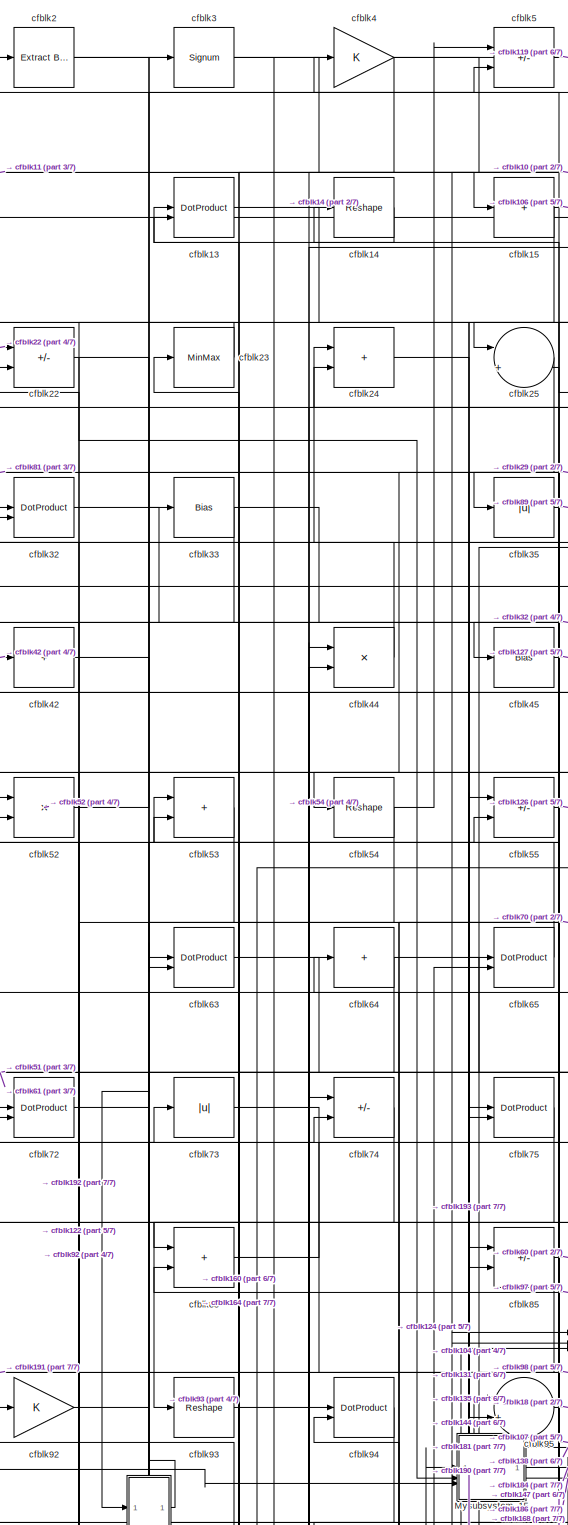
[diagram: root canvas - part 1/7, top left region]
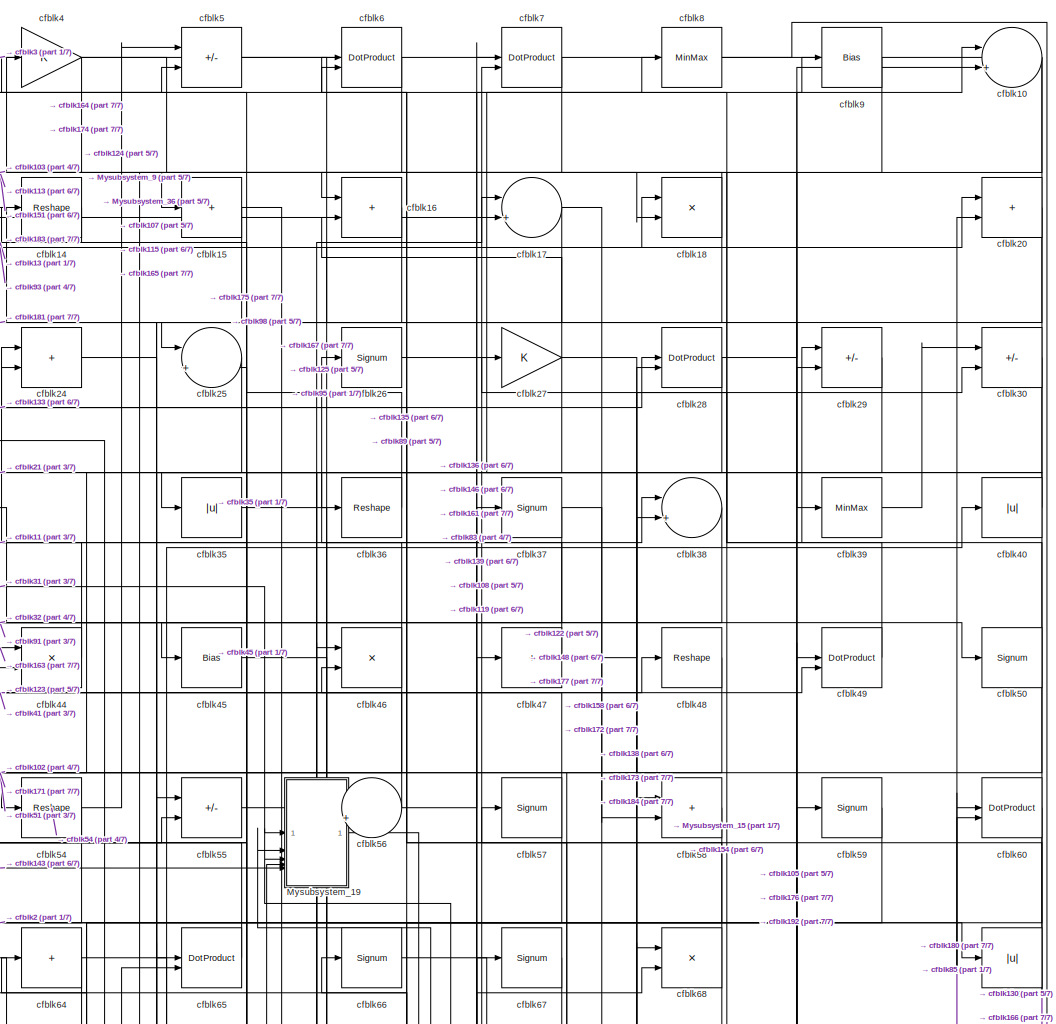
[diagram: root canvas - part 2/7, top center region]
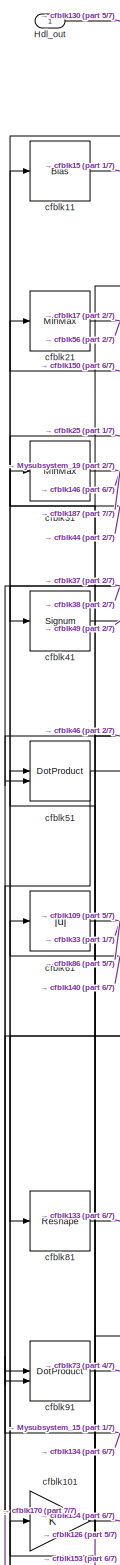
[diagram: root canvas - part 3/7, top left region]
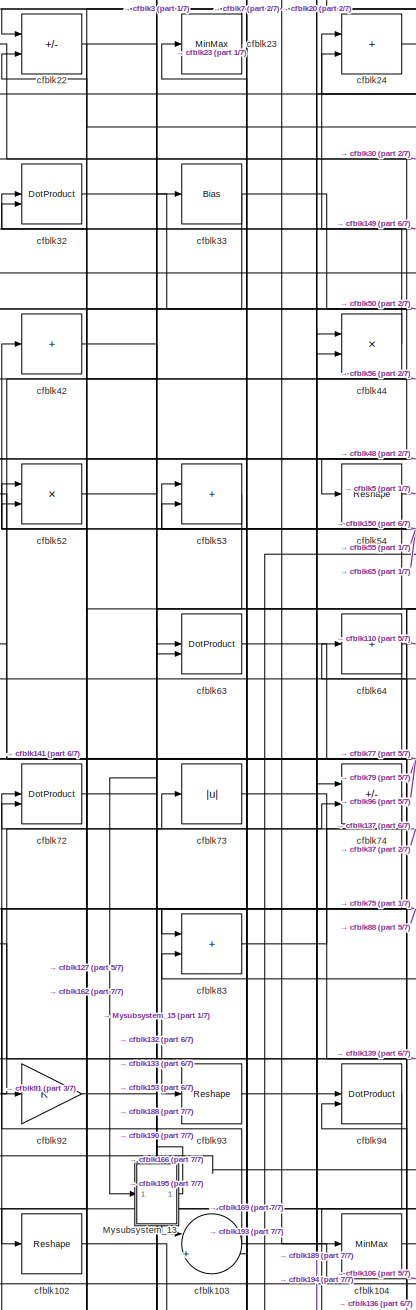
[diagram: root canvas - part 4/7, top left region]
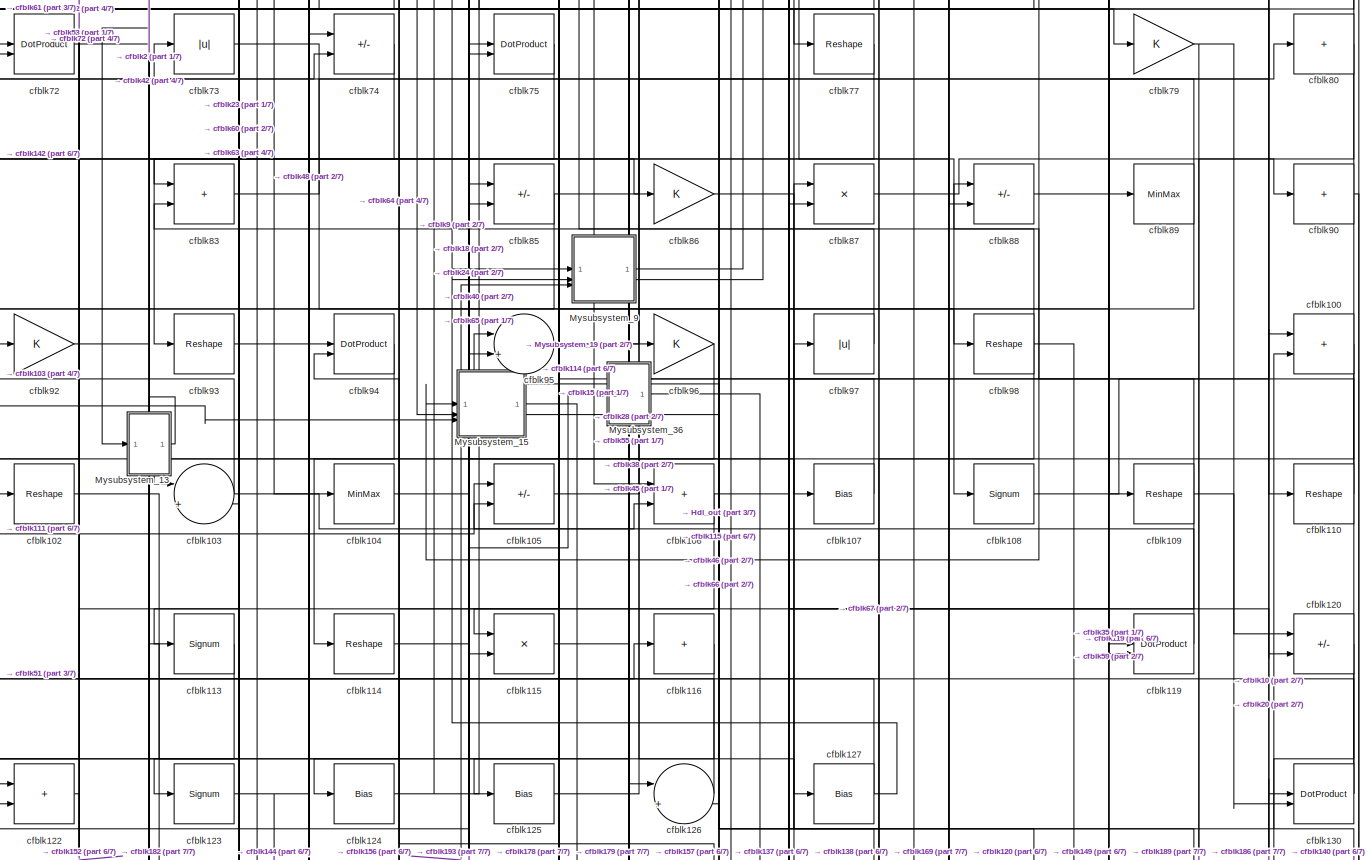
[diagram: root canvas - part 5/7, full width, middle band]
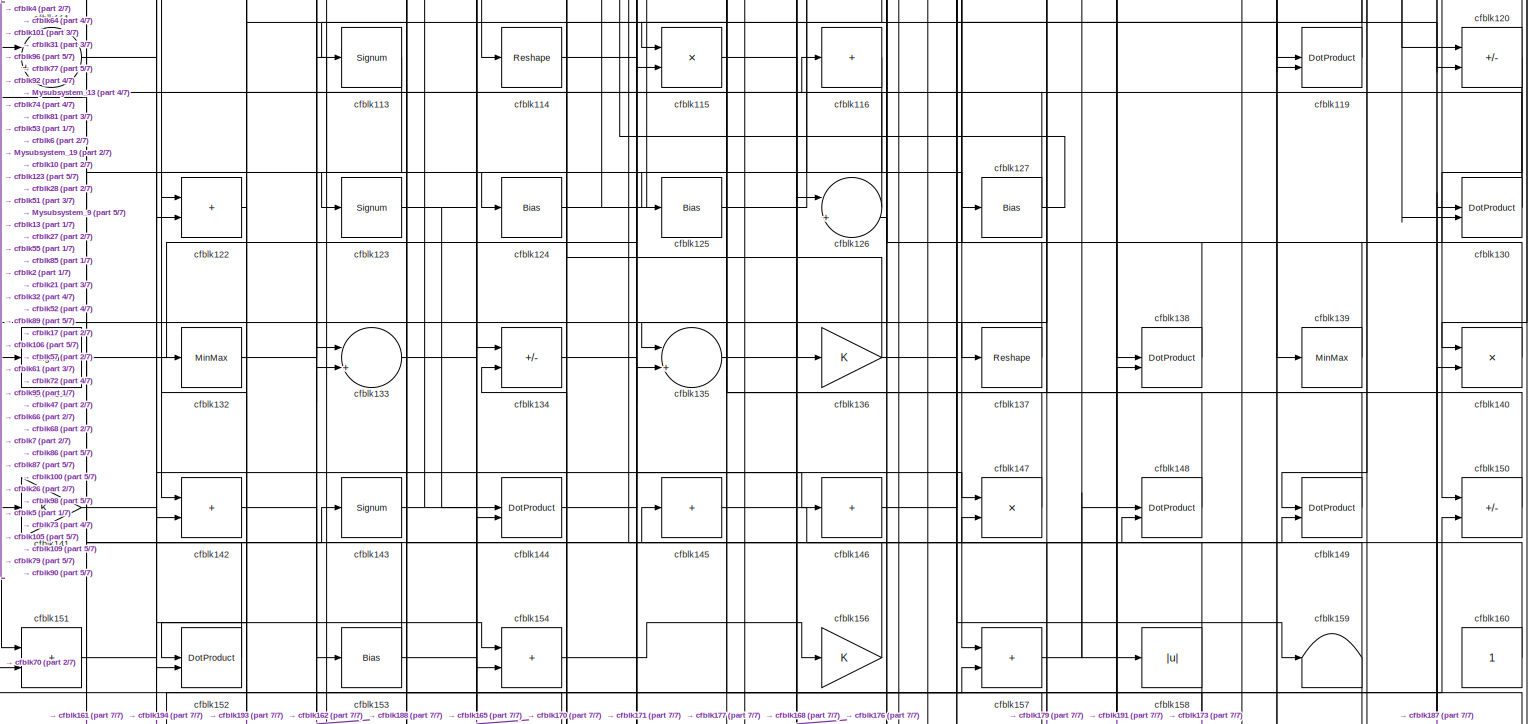
[diagram: root canvas - part 6/7, full width, bottom band]
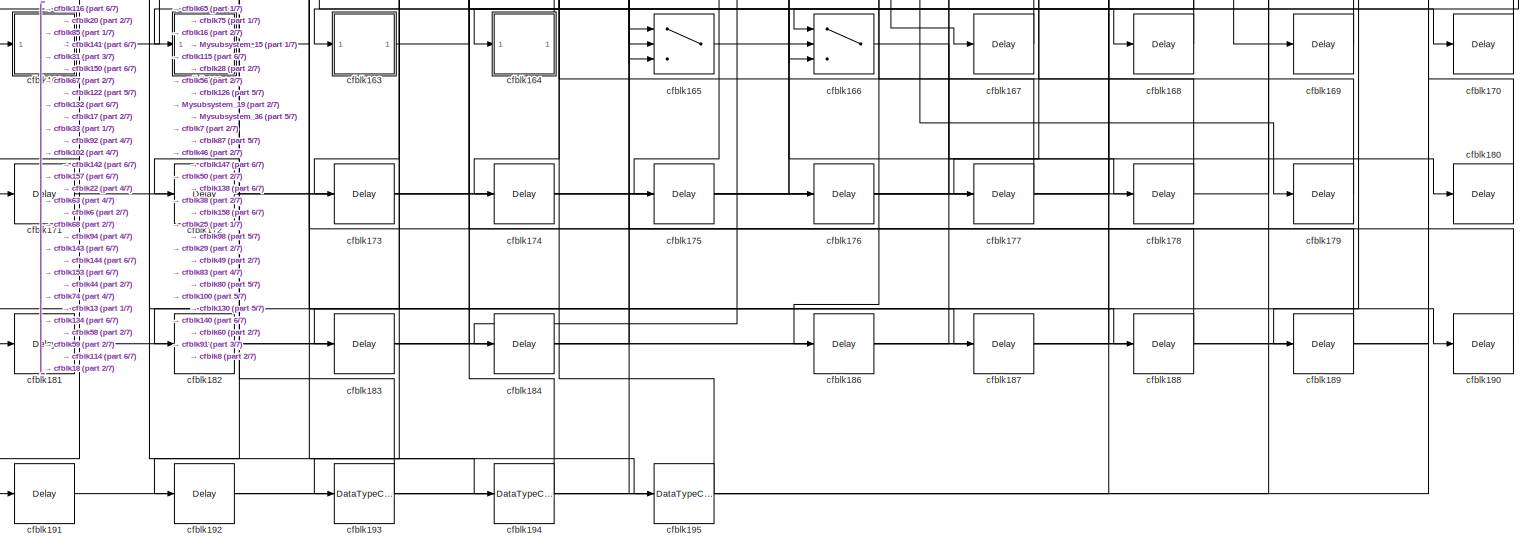
[diagram: root canvas - part 7/7, full width, bottom band]
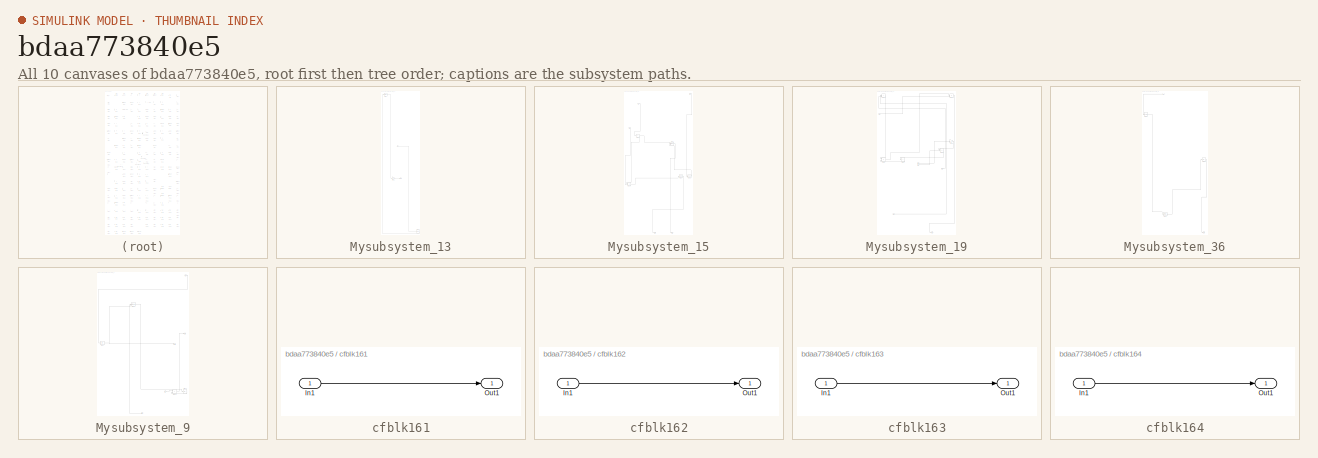
[diagram: thumbnail index - all 10 canvases of the model, root first then tree order]
MODEL slx_bdaa773840e5
KIND model
CONFIG AbsTol = auto
CONFIG EnableMultiTasking = off
CONFIG FixedStep = auto
CONFIG MaxStep = auto
CONFIG MinStep = auto
CONFIG RelTol = 1e-3
CONFIG SampleTimeConstraint = Unconstrained
CONFIG SolverName = VariableStepAuto
CONFIG StartTime = 0.0
CONFIG StopTime = 10.0
BLOCK [Outport] Hdl_out
  OutDataTypeStr = uint8
BLOCK [SubSystem] Mysubsystem_13
  RTWFcnName = Mysubsystem_13
  RTWFcnNameOpts = User specified
  RTWFileNameOpts = Use function name
  RTWSystemCode = Reusable function
  TreatAsAtomicUnit = on
BLOCK [Inport] Mysubsystem_13/In1
BLOCK [Outport] Mysubsystem_13/Out1
BLOCK [Reference] Mysubsystem_13/cfblk1  REF=hdlsllib/Logic and Bit
Operations/Detect Fall
Negative
  SourceBlock = hdlsllib/Logic and Bit\nOperations/Detect Fall\nNegative
  SourceType = Detect Fall Negative
BLOCK [Gain] Mysubsystem_13/cfblk112
BLOCK [Delay] Mysubsystem_13/cfblk185
  InputPortMap = u0
  SampleTime = 1
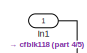
[diagram: Mysubsystem_15 - part 1/5, top right region]
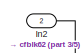
[diagram: Mysubsystem_15 - part 2/5, top left region]
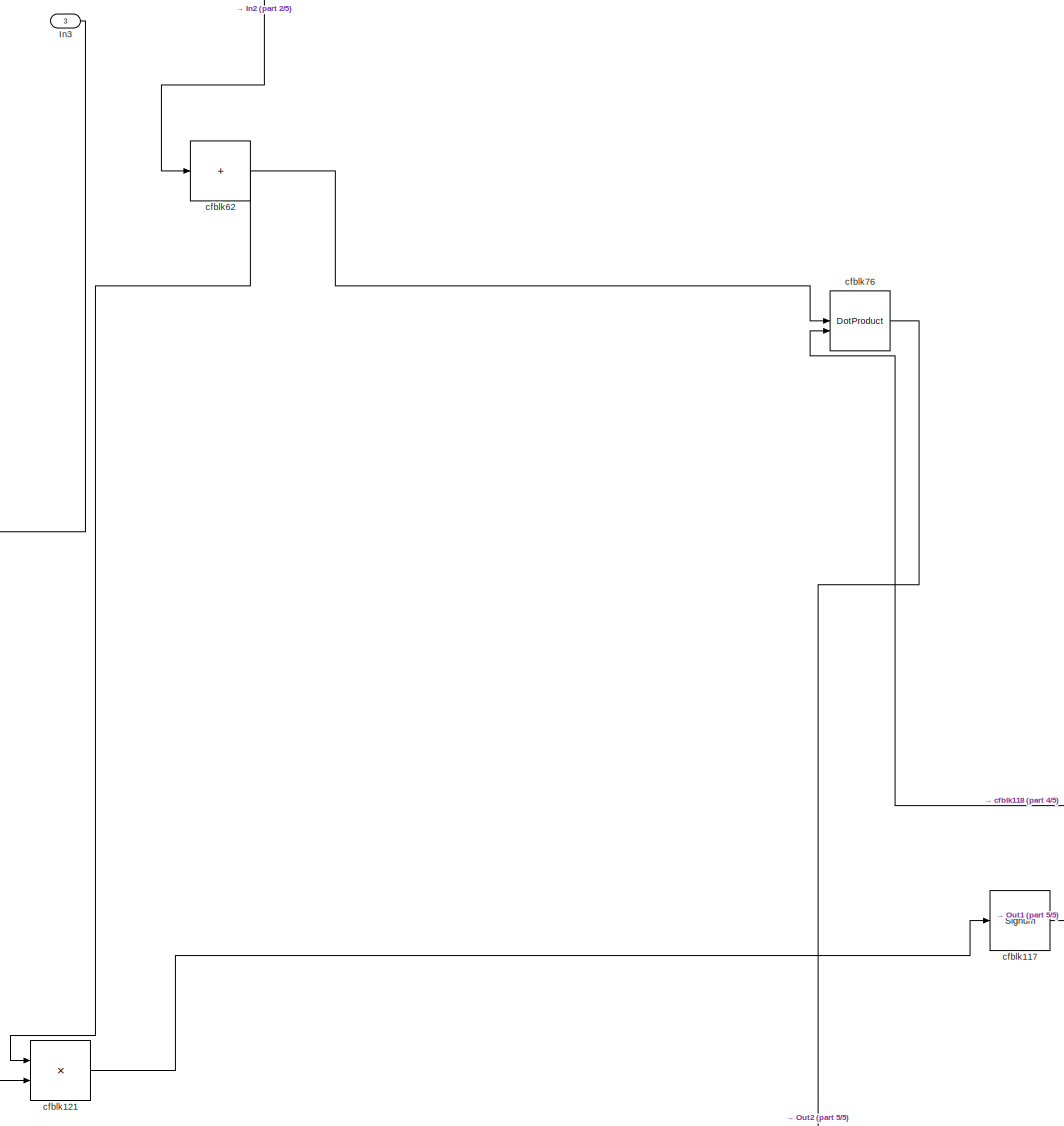
[diagram: Mysubsystem_15 - part 3/5, full width, middle band]
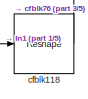
[diagram: Mysubsystem_15 - part 4/5, middle right region]
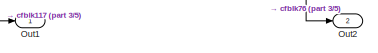
[diagram: Mysubsystem_15 - part 5/5, bottom center region]
BLOCK [SubSystem] Mysubsystem_15
  RTWFcnName = Mysubsystem_15
  RTWFcnNameOpts = User specified
  RTWFileNameOpts = Use function name
  RTWSystemCode = Reusable function
  TreatAsAtomicUnit = on
BLOCK [Inport] Mysubsystem_15/In1
BLOCK [Inport] Mysubsystem_15/In2
  Port = 2
BLOCK [Inport] Mysubsystem_15/In3
  Port = 3
BLOCK [Outport] Mysubsystem_15/Out1
BLOCK [Outport] Mysubsystem_15/Out2
  Port = 2
BLOCK [Signum] Mysubsystem_15/cfblk117
BLOCK [Reshape] Mysubsystem_15/cfblk118
BLOCK [Product] Mysubsystem_15/cfblk121
  Inputs = */
  RndMeth = Zero
  SaturateOnIntegerOverflow = on
BLOCK [Sum] Mysubsystem_15/cfblk62
  IconShape = rectangular
  Inputs = +
BLOCK [DotProduct] Mysubsystem_15/cfblk76
  OutDataTypeStr = Inherit: Inherit via internal rule
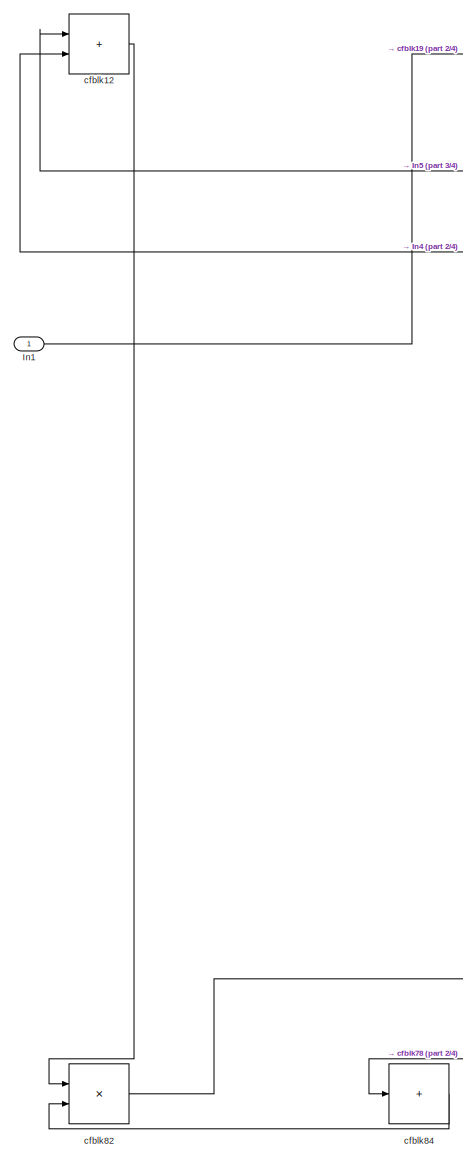
[diagram: Mysubsystem_19 - part 1/4, top left region]
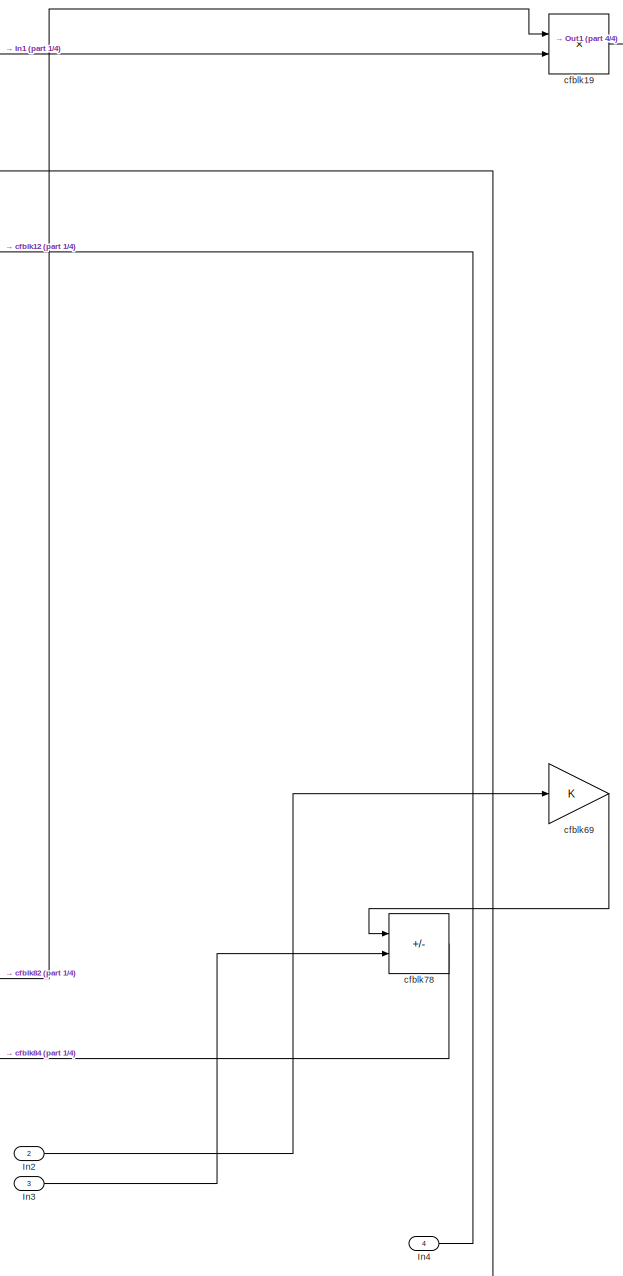
[diagram: Mysubsystem_19 - part 2/4, top right region]
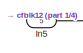
[diagram: Mysubsystem_19 - part 3/4, bottom left region]
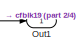
[diagram: Mysubsystem_19 - part 4/4, bottom right region]
BLOCK [SubSystem] Mysubsystem_19
  RTWFcnName = Mysubsystem_19
  RTWFcnNameOpts = User specified
  RTWFileNameOpts = Use function name
  RTWSystemCode = Reusable function
  TreatAsAtomicUnit = on
BLOCK [Inport] Mysubsystem_19/In1
BLOCK [Inport] Mysubsystem_19/In2
  Port = 2
BLOCK [Inport] Mysubsystem_19/In3
  Port = 3
BLOCK [Inport] Mysubsystem_19/In4
  Port = 4
BLOCK [Inport] Mysubsystem_19/In5
  Port = 5
BLOCK [Outport] Mysubsystem_19/Out1
BLOCK [Sum] Mysubsystem_19/cfblk12
  IconShape = rectangular
BLOCK [Product] Mysubsystem_19/cfblk19
  Inputs = */
  RndMeth = Zero
  SaturateOnIntegerOverflow = on
BLOCK [Gain] Mysubsystem_19/cfblk69
BLOCK [Sum] Mysubsystem_19/cfblk78
  IconShape = rectangular
  Inputs = +-
BLOCK [Product] Mysubsystem_19/cfblk82
  Inputs = */
  RndMeth = Zero
  SaturateOnIntegerOverflow = on
BLOCK [Sum] Mysubsystem_19/cfblk84
  IconShape = rectangular
  Inputs = +
BLOCK [SubSystem] Mysubsystem_36
  RTWFcnName = Mysubsystem_36
  RTWFcnNameOpts = User specified
  RTWFileNameOpts = Use function name
  RTWSystemCode = Reusable function
  TreatAsAtomicUnit = on
BLOCK [Inport] Mysubsystem_36/In1
BLOCK [Outport] Mysubsystem_36/Out1
BLOCK [MinMax] Mysubsystem_36/cfblk155
BLOCK [Reshape] Mysubsystem_36/cfblk43
BLOCK [Abs] Mysubsystem_36/cfblk99
  SaturateOnIntegerOverflow = off
BLOCK [SubSystem] Mysubsystem_9
  RTWFcnName = Mysubsystem_9
  RTWFcnNameOpts = User specified
  RTWFileNameOpts = Use function name
  RTWSystemCode = Reusable function
  TreatAsAtomicUnit = on
BLOCK [Inport] Mysubsystem_9/In1
BLOCK [Inport] Mysubsystem_9/In2
  Port = 2
BLOCK [Inport] Mysubsystem_9/In3
  Port = 3
BLOCK [Outport] Mysubsystem_9/Out1
BLOCK [Outport] Mysubsystem_9/Out2
  Port = 2
BLOCK [Sum] Mysubsystem_9/cfblk128
  IconShape = rectangular
BLOCK [Abs] Mysubsystem_9/cfblk129
  SaturateOnIntegerOverflow = off
BLOCK [DotProduct] Mysubsystem_9/cfblk34
  OutDataTypeStr = Inherit: Inherit via internal rule
BLOCK [Abs] Mysubsystem_9/cfblk71
  SaturateOnIntegerOverflow = off
BLOCK [Sum] cfblk10
  Inputs = |++
  OutDataTypeStr = uint8
BLOCK [Sum] cfblk100
  IconShape = rectangular
  OutDataTypeStr = uint8
BLOCK [Gain] cfblk101
  OutDataTypeStr = uint8
BLOCK [Reshape] cfblk102
BLOCK [Sum] cfblk103
  Inputs = |++
  OutDataTypeStr = uint8
BLOCK [MinMax] cfblk104
  OutDataTypeStr = uint8
BLOCK [Sum] cfblk105
  IconShape = rectangular
  Inputs = +-
  OutDataTypeStr = uint8
BLOCK [Sum] cfblk106
  IconShape = rectangular
  OutDataTypeStr = uint8
BLOCK [Bias] cfblk107
  Bias = 0.0
  SaturateOnIntegerOverflow = off
BLOCK [Signum] cfblk108
BLOCK [Reshape] cfblk109
BLOCK [Bias] cfblk11
  Bias = 0.0
  SaturateOnIntegerOverflow = off
BLOCK [Reshape] cfblk110
BLOCK [Sum] cfblk111
  Inputs = |++
  OutDataTypeStr = uint8
BLOCK [Signum] cfblk113
BLOCK [Reshape] cfblk114
BLOCK [Product] cfblk115
  Inputs = */
  OutDataTypeStr = uint8
  RndMeth = Zero
  SaturateOnIntegerOverflow = on
BLOCK [Sum] cfblk116
  IconShape = rectangular
  Inputs = +
  OutDataTypeStr = uint8
BLOCK [DotProduct] cfblk119
  OutDataTypeStr = uint8
BLOCK [Sum] cfblk120
  IconShape = rectangular
  Inputs = +-
  OutDataTypeStr = uint8
BLOCK [Sum] cfblk122
  IconShape = rectangular
  OutDataTypeStr = uint8
BLOCK [Signum] cfblk123
BLOCK [Bias] cfblk124
  Bias = 0.0
  SaturateOnIntegerOverflow = off
BLOCK [Bias] cfblk125
  Bias = 0.0
  SaturateOnIntegerOverflow = off
BLOCK [Sum] cfblk126
  Inputs = |++
  OutDataTypeStr = uint8
BLOCK [Bias] cfblk127
  Bias = 0.0
  SaturateOnIntegerOverflow = off
BLOCK [DotProduct] cfblk13
  OutDataTypeStr = uint8
BLOCK [DotProduct] cfblk130
  OutDataTypeStr = uint8
BLOCK [Signum] cfblk131
BLOCK [MinMax] cfblk132
  OutDataTypeStr = uint8
BLOCK [Sum] cfblk133
  Inputs = |++
  OutDataTypeStr = uint8
BLOCK [Sum] cfblk134
  IconShape = rectangular
  Inputs = +-
  OutDataTypeStr = uint8
BLOCK [Sum] cfblk135
  Inputs = |++
  OutDataTypeStr = uint8
BLOCK [Gain] cfblk136
  OutDataTypeStr = uint8
BLOCK [Reshape] cfblk137
BLOCK [DotProduct] cfblk138
  OutDataTypeStr = uint8
BLOCK [MinMax] cfblk139
  OutDataTypeStr = uint8
BLOCK [Reshape] cfblk14
BLOCK [Product] cfblk140
  Inputs = */
  OutDataTypeStr = uint8
  RndMeth = Zero
  SaturateOnIntegerOverflow = on
BLOCK [Gain] cfblk141
  OutDataTypeStr = uint8
BLOCK [Sum] cfblk142
  IconShape = rectangular
  OutDataTypeStr = uint8
BLOCK [Signum] cfblk143
BLOCK [DotProduct] cfblk144
  OutDataTypeStr = uint8
BLOCK [Sum] cfblk145
  IconShape = rectangular
  Inputs = +
  OutDataTypeStr = uint8
BLOCK [Sum] cfblk146
  IconShape = rectangular
  Inputs = +
  OutDataTypeStr = uint8
BLOCK [Product] cfblk147
  Inputs = */
  OutDataTypeStr = uint8
  RndMeth = Zero
  SaturateOnIntegerOverflow = on
BLOCK [DotProduct] cfblk148
  OutDataTypeStr = uint8
BLOCK [DotProduct] cfblk149
  OutDataTypeStr = uint8
BLOCK [Sum] cfblk15
  IconShape = rectangular
  Inputs = +
  OutDataTypeStr = uint8
BLOCK [Sum] cfblk150
  IconShape = rectangular
  Inputs = +-
  OutDataTypeStr = uint8
BLOCK [Sum] cfblk151
  IconShape = rectangular
  OutDataTypeStr = uint8
BLOCK [DotProduct] cfblk152
  OutDataTypeStr = uint8
BLOCK [Bias] cfblk153
  Bias = 0.0
  SaturateOnIntegerOverflow = off
BLOCK [Sum] cfblk154
  IconShape = rectangular
  OutDataTypeStr = uint8
BLOCK [Gain] cfblk156
  OutDataTypeStr = uint8
BLOCK [Sum] cfblk157
  IconShape = rectangular
  OutDataTypeStr = uint8
BLOCK [Abs] cfblk158
  OutDataTypeStr = uint8
  SaturateOnIntegerOverflow = off
BLOCK [Terminator] cfblk159
BLOCK [Sum] cfblk16
  IconShape = rectangular
  OutDataTypeStr = uint8
BLOCK [Constant] cfblk160
  OutDataTypeStr = uint8
  SampleTime = -1
BLOCK [SubSystem] cfblk161
  LibrarySourceBlock = hdlsllib/Ports &\nSubsystems/Subsystem
BLOCK [Inport] cfblk161/In1
BLOCK [Outport] cfblk161/Out1
BLOCK [SubSystem] cfblk162
  LibrarySourceBlock = hdlsllib/Ports &\nSubsystems/Subsystem
BLOCK [Inport] cfblk162/In1
BLOCK [Outport] cfblk162/Out1
BLOCK [SubSystem] cfblk163
  LibrarySourceBlock = hdlsllib/Ports &\nSubsystems/Subsystem
BLOCK [Inport] cfblk163/In1
BLOCK [Outport] cfblk163/Out1
BLOCK [SubSystem] cfblk164
  LibrarySourceBlock = hdlsllib/Ports &\nSubsystems/Subsystem
BLOCK [Inport] cfblk164/In1
BLOCK [Outport] cfblk164/Out1
BLOCK [Switch] cfblk165
  InputSameDT = off
  OutDataTypeStr = uint8
  SaturateOnIntegerOverflow = off
BLOCK [Switch] cfblk166
  InputSameDT = off
  OutDataTypeStr = uint8
  SaturateOnIntegerOverflow = off
BLOCK [Delay] cfblk167
  InputPortMap = u0
  SampleTime = 1
BLOCK [Delay] cfblk168
  InputPortMap = u0
  SampleTime = 1
BLOCK [Delay] cfblk169
  InputPortMap = u0
  SampleTime = 1
BLOCK [Sum] cfblk17
  Inputs = |++
  OutDataTypeStr = uint8
BLOCK [Delay] cfblk170
  InputPortMap = u0
  SampleTime = 1
BLOCK [Delay] cfblk171
  InputPortMap = u0
  SampleTime = 1
BLOCK [Delay] cfblk172
  InputPortMap = u0
  SampleTime = 1
BLOCK [Delay] cfblk173
  InputPortMap = u0
  SampleTime = 1
BLOCK [Delay] cfblk174
  InputPortMap = u0
  SampleTime = 1
BLOCK [Delay] cfblk175
  InputPortMap = u0
  SampleTime = 1
BLOCK [Delay] cfblk176
  InputPortMap = u0
  SampleTime = 1
BLOCK [Delay] cfblk177
  InputPortMap = u0
  SampleTime = 1
BLOCK [Delay] cfblk178
  InputPortMap = u0
  SampleTime = 1
BLOCK [Delay] cfblk179
  InputPortMap = u0
  SampleTime = 1
BLOCK [Product] cfblk18
  Inputs = */
  OutDataTypeStr = uint8
  RndMeth = Zero
  SaturateOnIntegerOverflow = on
BLOCK [Delay] cfblk180
  InputPortMap = u0
  SampleTime = 1
BLOCK [Delay] cfblk181
  InputPortMap = u0
  SampleTime = 1
BLOCK [Delay] cfblk182
  InputPortMap = u0
  SampleTime = 1
BLOCK [Delay] cfblk183
  InputPortMap = u0
  SampleTime = 1
BLOCK [Delay] cfblk184
  InputPortMap = u0
  SampleTime = 1
BLOCK [Delay] cfblk186
  InputPortMap = u0
  SampleTime = 1
BLOCK [Delay] cfblk187
  InputPortMap = u0
  SampleTime = 1
BLOCK [Delay] cfblk188
  InputPortMap = u0
  SampleTime = 1
BLOCK [Delay] cfblk189
  InputPortMap = u0
  SampleTime = 1
BLOCK [Delay] cfblk190
  InputPortMap = u0
  SampleTime = 1
BLOCK [Delay] cfblk191
  InputPortMap = u0
  SampleTime = 1
BLOCK [Delay] cfblk192
  InputPortMap = u0
  SampleTime = 1
BLOCK [DataTypeConversion] cfblk193
  OutDataTypeStr = uint8
  RndMeth = Floor
  SaturateOnIntegerOverflow = off
BLOCK [DataTypeConversion] cfblk194
  OutDataTypeStr = uint8
  RndMeth = Floor
  SaturateOnIntegerOverflow = off
BLOCK [DataTypeConversion] cfblk195
  OutDataTypeStr = uint8
  RndMeth = Floor
  SaturateOnIntegerOverflow = off
BLOCK [Reference] cfblk2  REF=simulink/Logic and Bit
Operations/Extract Bits
  LibrarySourceBlock = hdlsllib/Logic and Bit\nOperations/Extract Bits
  SourceBlock = simulink/Logic and Bit\nOperations/Extract Bits
  SourceType = Extract Bits
BLOCK [Sum] cfblk20
  IconShape = rectangular
  OutDataTypeStr = uint8
BLOCK [MinMax] cfblk21
  OutDataTypeStr = uint8
BLOCK [Sum] cfblk22
  IconShape = rectangular
  Inputs = +-
  OutDataTypeStr = uint8
BLOCK [MinMax] cfblk23
  OutDataTypeStr = uint8
BLOCK [Sum] cfblk24
  IconShape = rectangular
  OutDataTypeStr = uint8
BLOCK [Sum] cfblk25
  Inputs = |++
  OutDataTypeStr = uint8
BLOCK [Signum] cfblk26
BLOCK [Gain] cfblk27
  OutDataTypeStr = uint8
BLOCK [DotProduct] cfblk28
  OutDataTypeStr = uint8
BLOCK [Sum] cfblk29
  IconShape = rectangular
  Inputs = +-
  OutDataTypeStr = uint8
BLOCK [Signum] cfblk3
BLOCK [Sum] cfblk30
  IconShape = rectangular
  Inputs = +-
  OutDataTypeStr = uint8
BLOCK [MinMax] cfblk31
  OutDataTypeStr = uint8
BLOCK [DotProduct] cfblk32
  OutDataTypeStr = uint8
BLOCK [Bias] cfblk33
  Bias = 0.0
  SaturateOnIntegerOverflow = off
BLOCK [Abs] cfblk35
  OutDataTypeStr = uint8
  SaturateOnIntegerOverflow = off
BLOCK [Reshape] cfblk36
BLOCK [Signum] cfblk37
BLOCK [Sum] cfblk38
  Inputs = |++
  OutDataTypeStr = uint8
BLOCK [MinMax] cfblk39
  OutDataTypeStr = uint8
BLOCK [Gain] cfblk4
  OutDataTypeStr = uint8
BLOCK [Abs] cfblk40
  OutDataTypeStr = uint8
  SaturateOnIntegerOverflow = off
BLOCK [Signum] cfblk41
BLOCK [Sum] cfblk42
  IconShape = rectangular
  Inputs = +
  OutDataTypeStr = uint8
BLOCK [Product] cfblk44
  Inputs = */
  OutDataTypeStr = uint8
  RndMeth = Zero
  SaturateOnIntegerOverflow = on
BLOCK [Bias] cfblk45
  Bias = 0.0
  SaturateOnIntegerOverflow = off
BLOCK [Product] cfblk46
  Inputs = */
  OutDataTypeStr = uint8
  RndMeth = Zero
  SaturateOnIntegerOverflow = on
BLOCK [Sum] cfblk47
  IconShape = rectangular
  Inputs = +
  OutDataTypeStr = uint8
BLOCK [Reshape] cfblk48
BLOCK [DotProduct] cfblk49
  OutDataTypeStr = uint8
BLOCK [Sum] cfblk5
  IconShape = rectangular
  Inputs = +-
  OutDataTypeStr = uint8
BLOCK [Signum] cfblk50
BLOCK [DotProduct] cfblk51
  OutDataTypeStr = uint8
BLOCK [Product] cfblk52
  Inputs = */
  OutDataTypeStr = uint8
  RndMeth = Zero
  SaturateOnIntegerOverflow = on
BLOCK [Sum] cfblk53
  IconShape = rectangular
  OutDataTypeStr = uint8
BLOCK [Reshape] cfblk54
BLOCK [Sum] cfblk55
  IconShape = rectangular
  Inputs = +-
  OutDataTypeStr = uint8
BLOCK [Sum] cfblk56
  Inputs = |++
  OutDataTypeStr = uint8
BLOCK [Signum] cfblk57
BLOCK [Sum] cfblk58
  IconShape = rectangular
  OutDataTypeStr = uint8
BLOCK [Signum] cfblk59
BLOCK [DotProduct] cfblk6
  OutDataTypeStr = uint8
BLOCK [DotProduct] cfblk60
  OutDataTypeStr = uint8
BLOCK [Abs] cfblk61
  OutDataTypeStr = uint8
  SaturateOnIntegerOverflow = off
BLOCK [DotProduct] cfblk63
  OutDataTypeStr = uint8
BLOCK [Sum] cfblk64
  IconShape = rectangular
  Inputs = +
  OutDataTypeStr = uint8
BLOCK [DotProduct] cfblk65
  OutDataTypeStr = uint8
BLOCK [Signum] cfblk66
BLOCK [Signum] cfblk67
BLOCK [Product] cfblk68
  Inputs = */
  OutDataTypeStr = uint8
  RndMeth = Zero
  SaturateOnIntegerOverflow = on
BLOCK [DotProduct] cfblk7
  OutDataTypeStr = uint8
BLOCK [Abs] cfblk70
  OutDataTypeStr = uint8
  SaturateOnIntegerOverflow = off
BLOCK [DotProduct] cfblk72
  OutDataTypeStr = uint8
BLOCK [Abs] cfblk73
  OutDataTypeStr = uint8
  SaturateOnIntegerOverflow = off
BLOCK [Sum] cfblk74
  IconShape = rectangular
  Inputs = +-
  OutDataTypeStr = uint8
BLOCK [DotProduct] cfblk75
  OutDataTypeStr = uint8
BLOCK [Reshape] cfblk77
BLOCK [Gain] cfblk79
  OutDataTypeStr = uint8
BLOCK [MinMax] cfblk8
  OutDataTypeStr = uint8
BLOCK [Sum] cfblk80
  IconShape = rectangular
  Inputs = +
  OutDataTypeStr = uint8
BLOCK [Reshape] cfblk81
BLOCK [Sum] cfblk83
  IconShape = rectangular
  OutDataTypeStr = uint8
BLOCK [Sum] cfblk85
  IconShape = rectangular
  Inputs = +-
  OutDataTypeStr = uint8
BLOCK [Gain] cfblk86
  OutDataTypeStr = uint8
BLOCK [Product] cfblk87
  Inputs = */
  OutDataTypeStr = uint8
  RndMeth = Zero
  SaturateOnIntegerOverflow = on
BLOCK [Sum] cfblk88
  IconShape = rectangular
  Inputs = +-
  OutDataTypeStr = uint8
BLOCK [MinMax] cfblk89
  OutDataTypeStr = uint8
BLOCK [Bias] cfblk9
  Bias = 0.0
  SaturateOnIntegerOverflow = off
BLOCK [Sum] cfblk90
  IconShape = rectangular
  Inputs = +
  OutDataTypeStr = uint8
BLOCK [DotProduct] cfblk91
  OutDataTypeStr = uint8
BLOCK [Gain] cfblk92
  OutDataTypeStr = uint8
BLOCK [Reshape] cfblk93
BLOCK [DotProduct] cfblk94
  OutDataTypeStr = uint8
BLOCK [Sum] cfblk95
  Inputs = |++
  OutDataTypeStr = uint8
BLOCK [Gain] cfblk96
  OutDataTypeStr = uint8
BLOCK [Abs] cfblk97
  OutDataTypeStr = uint8
  SaturateOnIntegerOverflow = off
BLOCK [Reshape] cfblk98
LINE Mysubsystem_13/In1:1 -> Mysubsystem_13/cfblk185:1
LINE Mysubsystem_13/cfblk112:1 -> Mysubsystem_13/Out1:1
LINE Mysubsystem_13/cfblk185:1 -> Mysubsystem_13/cfblk1:1
LINE Mysubsystem_13/cfblk1:1 -> Mysubsystem_13/cfblk112:1
NET Mysubsystem_13:1 -> cfblk133:2, cfblk136:1
LINE Mysubsystem_15/In1:1 -> Mysubsystem_15/cfblk118:1
LINE Mysubsystem_15/In2:1 -> Mysubsystem_15/cfblk62:1
LINE Mysubsystem_15/In3:1 -> Mysubsystem_15/cfblk121:2
LINE Mysubsystem_15/cfblk117:1 -> Mysubsystem_15/Out1:1
LINE Mysubsystem_15/cfblk118:1 -> Mysubsystem_15/cfblk76:2
LINE Mysubsystem_15/cfblk121:1 -> Mysubsystem_15/cfblk117:1
NET Mysubsystem_15/cfblk62:1 -> Mysubsystem_15/cfblk121:1, Mysubsystem_15/cfblk76:1
LINE Mysubsystem_15/cfblk76:1 -> Mysubsystem_15/Out2:1
LINE Mysubsystem_15:1 -> cfblk184:1
LINE Mysubsystem_15:2 -> cfblk186:1
LINE Mysubsystem_19/In1:1 -> Mysubsystem_19/cfblk19:2
LINE Mysubsystem_19/In2:1 -> Mysubsystem_19/cfblk69:1
LINE Mysubsystem_19/In3:1 -> Mysubsystem_19/cfblk78:2
LINE Mysubsystem_19/In4:1 -> Mysubsystem_19/cfblk12:2
LINE Mysubsystem_19/In5:1 -> Mysubsystem_19/cfblk12:1
LINE Mysubsystem_19/cfblk12:1 -> Mysubsystem_19/cfblk82:1
LINE Mysubsystem_19/cfblk19:1 -> Mysubsystem_19/Out1:1
LINE Mysubsystem_19/cfblk69:1 -> Mysubsystem_19/cfblk78:1
LINE Mysubsystem_19/cfblk78:1 -> Mysubsystem_19/cfblk84:1
LINE Mysubsystem_19/cfblk82:1 -> Mysubsystem_19/cfblk19:1
LINE Mysubsystem_19/cfblk84:1 -> Mysubsystem_19/cfblk82:2
LINE Mysubsystem_19:1 -> cfblk167:1
LINE Mysubsystem_36/In1:1 -> Mysubsystem_36/cfblk43:1
LINE Mysubsystem_36/cfblk155:1 -> Mysubsystem_36/cfblk99:1
LINE Mysubsystem_36/cfblk43:1 -> Mysubsystem_36/cfblk155:1
LINE Mysubsystem_36/cfblk99:1 -> Mysubsystem_36/Out1:1
LINE Mysubsystem_36:1 -> cfblk179:1
LINE Mysubsystem_9/In1:1 -> Mysubsystem_9/cfblk71:1
LINE Mysubsystem_9/In2:1 -> Mysubsystem_9/cfblk128:1
LINE Mysubsystem_9/In3:1 -> Mysubsystem_9/cfblk34:2
LINE Mysubsystem_9/cfblk128:1 -> Mysubsystem_9/Out1:1
LINE Mysubsystem_9/cfblk129:1 -> Mysubsystem_9/cfblk128:2
LINE Mysubsystem_9/cfblk34:1 -> Mysubsystem_9/cfblk129:1
NET Mysubsystem_9/cfblk71:1 -> Mysubsystem_9/Out2:1, Mysubsystem_9/cfblk34:1
LINE Mysubsystem_9:1 -> Mysubsystem_19:2
LINE Mysubsystem_9:2 -> Mysubsystem_19:3
LINE cfblk100:1 -> cfblk137:1
NET cfblk101:1 -> cfblk154:1, cfblk31:1
NET cfblk102:1 -> cfblk166:2, cfblk195:1
NET cfblk103:1 -> cfblk106:2, cfblk72:1
LINE cfblk104:1 -> cfblk75:2
LINE cfblk105:1 -> cfblk59:1
NET cfblk106:1 -> cfblk120:2, cfblk124:1
LINE cfblk107:1 -> cfblk53:1
NET cfblk108:1 -> cfblk10:2, cfblk20:2
NET cfblk109:1 -> cfblk130:2, cfblk152:1, cfblk88:1
NET cfblk10:1 -> Mysubsystem_15:1, cfblk154:2
LINE cfblk110:1 -> cfblk97:1
LINE cfblk111:1 -> cfblk105:2
LINE cfblk113:1 -> cfblk152:2
LINE cfblk114:1 -> cfblk168:1
LINE cfblk115:1 -> cfblk176:1
LINE cfblk116:1 -> cfblk161:1
LINE cfblk119:1 -> cfblk105:1
LINE cfblk11:1 -> cfblk15:1
LINE cfblk120:1 -> cfblk150:1
LINE cfblk122:1 -> cfblk182:1
NET cfblk123:1 -> cfblk144:1, cfblk48:1
NET cfblk124:1 -> cfblk40:1, cfblk65:2
LINE cfblk125:1 -> cfblk38:1
LINE cfblk126:1 -> cfblk51:1
NET cfblk127:1 -> Mysubsystem_9:2, cfblk52:1
NET cfblk130:1 -> Hdl_out:1, cfblk66:1
LINE cfblk131:1 -> cfblk85:2
LINE cfblk132:1 -> cfblk74:2
LINE cfblk133:1 -> cfblk28:1
LINE cfblk134:1 -> cfblk147:1
LINE cfblk135:1 -> cfblk17:1
NET cfblk136:1 -> cfblk159:1, cfblk64:1, cfblk68:2
NET cfblk137:1 -> cfblk131:1, cfblk72:2
NET cfblk138:1 -> cfblk87:1, cfblk95:1
LINE cfblk139:1 -> cfblk7:2
LINE cfblk13:1 -> cfblk135:2
NET cfblk140:1 -> cfblk100:2, cfblk61:1
LINE cfblk141:1 -> cfblk194:1
LINE cfblk142:1 -> cfblk188:1
NET cfblk143:1 -> Mysubsystem_19:5, cfblk170:1
LINE cfblk144:1 -> cfblk55:1
LINE cfblk145:1 -> cfblk149:2
LINE cfblk146:1 -> cfblk47:1
LINE cfblk147:1 -> cfblk2:1
LINE cfblk148:1 -> cfblk57:1
LINE cfblk149:1 -> cfblk32:1
LINE cfblk14:1 -> cfblk13:1
NET cfblk150:1 -> cfblk21:1, cfblk52:2
NET cfblk151:1 -> cfblk116:1, cfblk143:1
LINE cfblk152:1 -> cfblk111:1
NET cfblk153:1 -> cfblk101:1, cfblk165:2
LINE cfblk154:1 -> cfblk156:1
NET cfblk156:1 -> Mysubsystem_9:3, cfblk145:1
LINE cfblk157:1 -> cfblk148:1
NET cfblk158:1 -> cfblk111:2, cfblk173:1
NET cfblk15:1 -> cfblk106:1, cfblk25:1
NET cfblk160:1 -> cfblk148:2, cfblk53:2
LINE cfblk161/In1:1 -> cfblk161/Out1:1
NET cfblk161:1 -> cfblk150:2, cfblk67:1
LINE cfblk162/In1:1 -> cfblk162/Out1:1
LINE cfblk162:1 -> cfblk157:2
LINE cfblk163/In1:1 -> cfblk163/Out1:1
LINE cfblk163:1 -> cfblk44:1
LINE cfblk164/In1:1 -> cfblk164/Out1:1
LINE cfblk164:1 -> cfblk13:2
LINE cfblk165:1 -> cfblk180:1
LINE cfblk166:1 -> cfblk178:1
LINE cfblk167:1 -> cfblk46:1
LINE cfblk168:1 -> cfblk25:2
LINE cfblk169:1 -> cfblk83:2
LINE cfblk16:1 -> cfblk175:1
LINE cfblk170:1 -> cfblk91:1
LINE cfblk171:1 -> cfblk144:2
LINE cfblk172:1 -> cfblk28:2
LINE cfblk173:1 -> cfblk68:1
LINE cfblk174:1 -> cfblk56:1
LINE cfblk175:1 -> cfblk7:1
LINE cfblk176:1 -> cfblk29:2
LINE cfblk177:1 -> cfblk134:2
LINE cfblk178:1 -> cfblk126:2
LINE cfblk179:1 -> cfblk147:2
NET cfblk17:1 -> cfblk158:1, cfblk172:1
LINE cfblk180:1 -> cfblk60:1
LINE cfblk181:1 -> cfblk75:1
LINE cfblk182:1 -> cfblk87:2
LINE cfblk183:1 -> cfblk44:2
LINE cfblk184:1 -> cfblk38:2
LINE cfblk186:1 -> cfblk100:1
LINE cfblk187:1 -> cfblk140:2
LINE cfblk188:1 -> cfblk63:1
LINE cfblk189:1 -> cfblk74:1
NET cfblk18:1 -> Mysubsystem_36:1, cfblk165:3, cfblk16:1
LINE cfblk190:1 -> cfblk85:1
LINE cfblk191:1 -> cfblk138:2
LINE cfblk192:1 -> cfblk49:1
NET cfblk193:1 -> cfblk130:1, cfblk132:1, cfblk165:1, cfblk65:1
LINE cfblk194:1 -> cfblk94:1
LINE cfblk195:1 -> cfblk94:2
LINE cfblk20:1 -> cfblk181:1
NET cfblk21:1 -> cfblk17:2, cfblk56:2
NET cfblk22:1 -> Mysubsystem_15:2, cfblk190:1
LINE cfblk23:1 -> cfblk22:1
LINE cfblk24:1 -> cfblk107:1
LINE cfblk25:1 -> cfblk81:1
NET cfblk26:1 -> cfblk138:1, cfblk9:1
NET cfblk27:1 -> cfblk115:2, cfblk16:2, cfblk58:1
NET cfblk28:1 -> cfblk10:1, cfblk125:1, cfblk166:3
NET cfblk29:1 -> cfblk35:1, cfblk45:1
NET cfblk2:1 -> cfblk70:1, cfblk98:1
LINE cfblk30:1 -> cfblk54:1
NET cfblk31:1 -> Mysubsystem_19:1, cfblk146:1, cfblk187:1
NET cfblk32:1 -> cfblk50:1, cfblk5:2
NET cfblk33:1 -> cfblk192:1, cfblk95:2
LINE cfblk35:1 -> cfblk89:1
LINE cfblk36:1 -> cfblk14:1
NET cfblk37:1 -> cfblk41:1, cfblk58:2
LINE cfblk38:1 -> cfblk91:2
LINE cfblk39:1 -> cfblk30:1
NET cfblk3:1 -> cfblk104:1, cfblk18:2
LINE cfblk40:1 -> cfblk36:1
LINE cfblk41:1 -> cfblk49:2
NET cfblk42:1 -> Mysubsystem_13:1, cfblk79:1
LINE cfblk44:1 -> cfblk11:1
LINE cfblk45:1 -> cfblk127:1
NET cfblk46:1 -> cfblk26:1, cfblk51:2
NET cfblk47:1 -> cfblk24:1, cfblk30:2
LINE cfblk48:1 -> cfblk102:1
NET cfblk49:1 -> cfblk29:1, cfblk4:1
NET cfblk4:1 -> cfblk151:1, cfblk39:1
NET cfblk50:1 -> cfblk171:1, cfblk177:1, cfblk27:1
NET cfblk51:1 -> Mysubsystem_15:3, cfblk134:1
LINE cfblk52:1 -> cfblk3:1
LINE cfblk53:1 -> cfblk122:1
NET cfblk54:1 -> cfblk5:1, cfblk63:2
LINE cfblk55:1 -> cfblk126:1
NET cfblk56:1 -> cfblk32:2, cfblk8:1
NET cfblk57:1 -> cfblk135:1, cfblk6:2
LINE cfblk58:1 -> cfblk164:1
LINE cfblk59:1 -> cfblk174:1
LINE cfblk5:1 -> cfblk119:1
LINE cfblk60:1 -> cfblk123:1
NET cfblk61:1 -> cfblk109:1, cfblk33:1, cfblk86:1
NET cfblk63:1 -> cfblk103:1, cfblk96:1
NET cfblk64:1 -> cfblk110:1, cfblk141:1
LINE cfblk65:1 -> cfblk42:1
NET cfblk66:1 -> cfblk108:1, cfblk119:2
LINE cfblk67:1 -> cfblk122:2
NET cfblk68:1 -> cfblk163:1, cfblk24:2
NET cfblk6:1 -> cfblk113:1, cfblk183:1
NET cfblk70:1 -> cfblk151:2, cfblk6:1
NET cfblk72:1 -> cfblk77:1, cfblk88:2
LINE cfblk73:1 -> cfblk139:1
LINE cfblk74:1 -> cfblk92:1
LINE cfblk75:1 -> cfblk93:1
LINE cfblk77:1 -> cfblk142:1
NET cfblk79:1 -> cfblk120:1, cfblk149:1
NET cfblk7:1 -> cfblk103:2, cfblk83:1
LINE cfblk80:1 -> cfblk189:1
LINE cfblk81:1 -> cfblk133:1
LINE cfblk83:1 -> cfblk37:1
NET cfblk85:1 -> cfblk191:1, cfblk60:2
LINE cfblk86:1 -> cfblk157:1
LINE cfblk87:1 -> cfblk90:1
LINE cfblk88:1 -> cfblk80:1
NET cfblk89:1 -> cfblk115:1, cfblk46:2
LINE cfblk8:1 -> cfblk166:1
LINE cfblk90:1 -> cfblk140:1
LINE cfblk91:1 -> cfblk73:1
NET cfblk92:1 -> cfblk153:1, cfblk162:1, cfblk22:2, cfblk55:2
LINE cfblk93:1 -> cfblk20:1
LINE cfblk94:1 -> cfblk193:1
LINE cfblk95:1 -> cfblk18:1
LINE cfblk96:1 -> cfblk142:2
LINE cfblk97:1 -> cfblk23:1
NET cfblk98:1 -> Mysubsystem_19:4, cfblk114:1, cfblk169:1
LINE cfblk9:1 -> Mysubsystem_9:1
note: NET lines group one-source signal fan-out (src -> all destinations, sorted); 1:1 wires keep LINE
